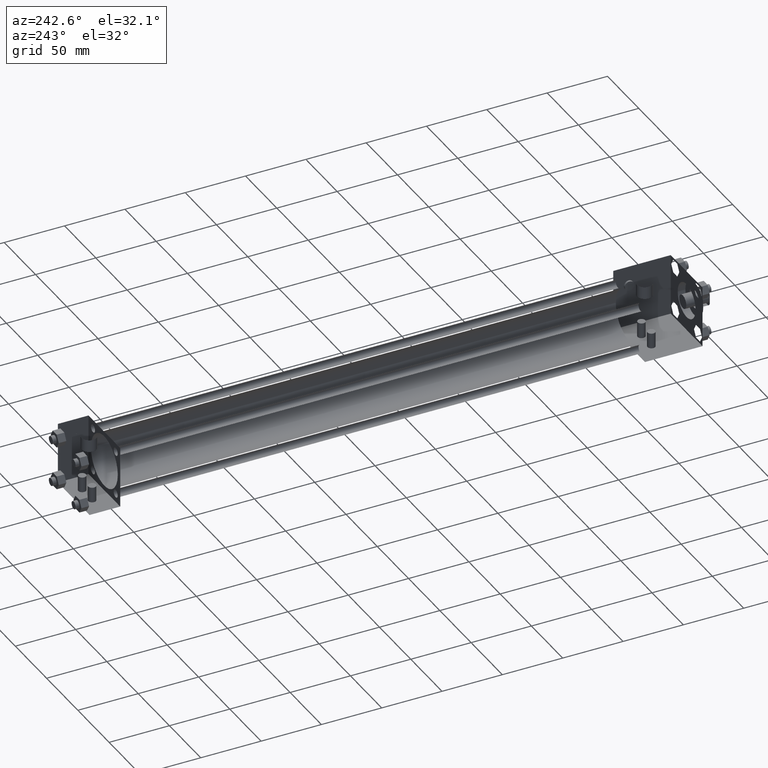
[diagram: clean part render]
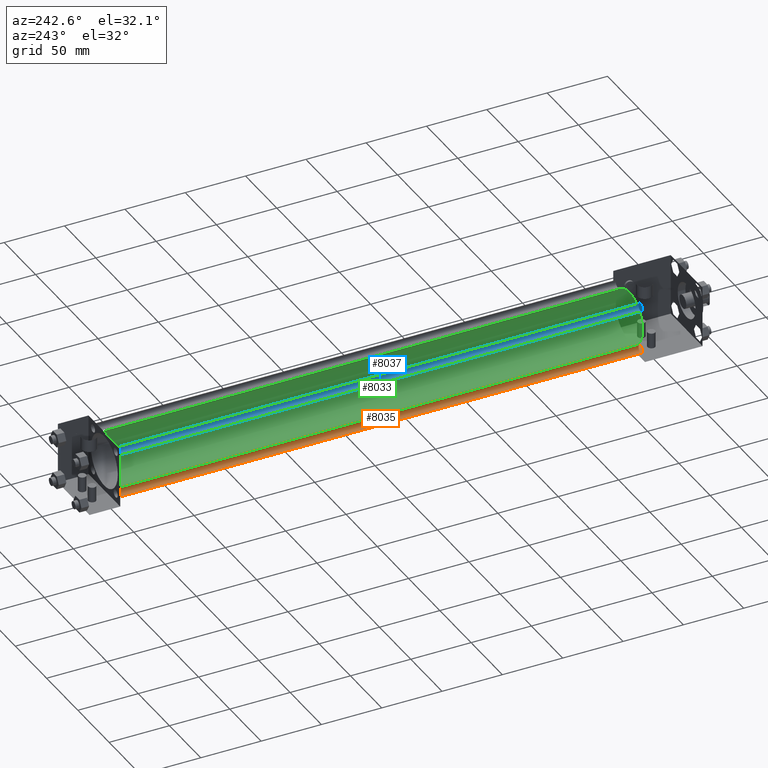
[diagram: same view with three faces highlighted in distinct colors, each labeled with its STEP entity id]
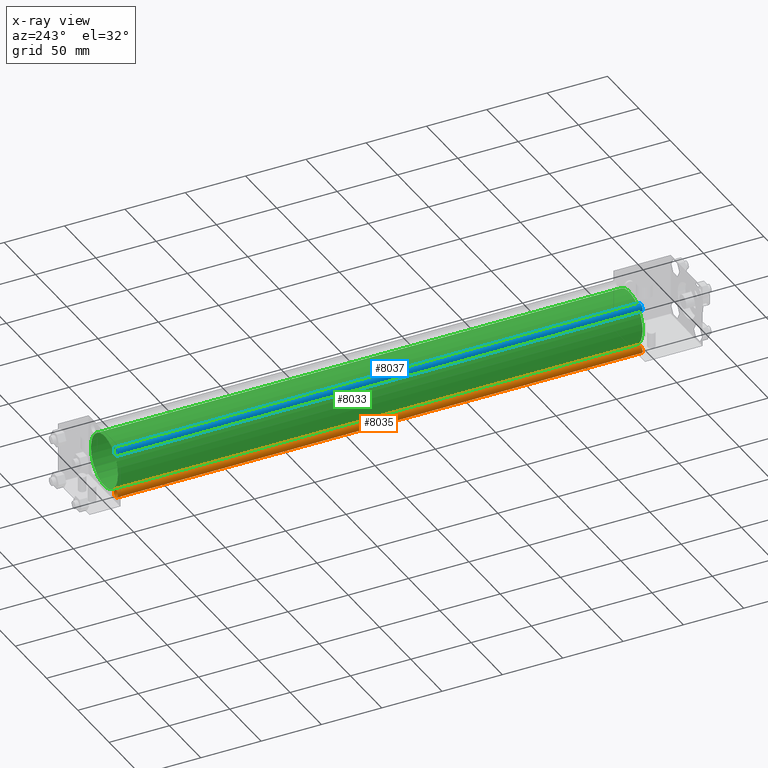
[diagram: x-ray of the same camera — body ghosted, the three highlighted faces saturated]
A machine part, auxiliary view with three faces highlighted in distinct colors.
The next image is the same camera in x-ray (body ghosted, the three faces saturated) — at least one of them is partly hidden behind the body in this view.
Their STEP definitions:

[orange] entity #8035 — the highlighted cylindrical surface (bore or boss wall) has radius 3.175 mm, axis along (0, -1, 0).
#482=EDGE_CURVE('',#488,#488,#483,.T.);
#483=CIRCLE('',#484,3.175000000E+000);
#484=AXIS2_PLACEMENT_3D('',#485,#486,#487);
#485=CARTESIAN_POINT('',(-1.816100000E+001,6.350000000E+001,-1.816100000E+001));
#486=DIRECTION('',(0.0E+000,1.0E+000,0.0E+000));
#487=DIRECTION('',(-1.0E+000,0.0E+000,0.0E+000));
#488=VERTEX_POINT('',#489);
#489=CARTESIAN_POINT('',(-1.498600000E+001,6.350000000E+001,-1.816100000E+001));
#2163=FACE_OUTER_BOUND('',#2165,.T.);
#2164=FACE_BOUND('',#2166,.T.);
#2165=EDGE_LOOP('',(#2167));
#2166=EDGE_LOOP('',(#2168));
#2167=ORIENTED_EDGE('',*,*,#2212,.F.);
#2168=ORIENTED_EDGE('',*,*,#482,.T.);
#2169=CYLINDRICAL_SURFACE('',#2170,3.175000000E+000);
#2170=AXIS2_PLACEMENT_3D('',#2171,#2172,#2173);
#2171=CARTESIAN_POINT('',(-1.816100000E+001,4.984750000E+002,-1.816100000E+001));
#2172=DIRECTION('',(0.0E+000,-1.0E+000,0.0E+000));
#2173=DIRECTION('',(0.0E+000,0.0E+000,-1.0E+000));
#2212=EDGE_CURVE('',#2218,#2218,#2213,.T.);
#2213=CIRCLE('',#2214,3.175000000E+000);
#2214=AXIS2_PLACEMENT_3D('',#2215,#2216,#2217);
#2215=CARTESIAN_POINT('',(-1.816100000E+001,4.984750000E+002,-1.816100000E+001));
#2216=DIRECTION('',(0.0E+000,1.0E+000,0.0E+000));
#2217=DIRECTION('',(1.0E+000,0.0E+000,0.0E+000));
#2218=VERTEX_POINT('',#2219);
#2219=CARTESIAN_POINT('',(-1.498600000E+001,4.984750000E+002,-1.816100000E+001));
#8035=ADVANCED_FACE('',(#2163,#2164),#2169,.T.);

[blue] entity #8037 — the highlighted cylindrical surface (bore or boss wall) has radius 3.175 mm, axis along (0, -1, 0).
#509=EDGE_CURVE('',#515,#515,#510,.T.);
#510=CIRCLE('',#511,3.175000000E+000);
#511=AXIS2_PLACEMENT_3D('',#512,#513,#514);
#512=CARTESIAN_POINT('',(-1.816100000E+001,6.350000000E+001,1.816100000E+001));
#513=DIRECTION('',(0.0E+000,1.0E+000,0.0E+000));
#514=DIRECTION('',(-1.0E+000,0.0E+000,0.0E+000));
#515=VERTEX_POINT('',#516);
#516=CARTESIAN_POINT('',(-1.498600000E+001,6.350000000E+001,1.816100000E+001));
#2185=FACE_OUTER_BOUND('',#2187,.T.);
#2186=FACE_BOUND('',#2188,.T.);
#2187=EDGE_LOOP('',(#2189));
#2188=EDGE_LOOP('',(#2190));
#2189=ORIENTED_EDGE('',*,*,#2244,.F.);
#2190=ORIENTED_EDGE('',*,*,#509,.T.);
#2191=CYLINDRICAL_SURFACE('',#2192,3.175000000E+000);
#2192=AXIS2_PLACEMENT_3D('',#2193,#2194,#2195);
#2193=CARTESIAN_POINT('',(-1.816100000E+001,4.984750000E+002,1.816100000E+001));
#2194=DIRECTION('',(0.0E+000,-1.0E+000,0.0E+000));
#2195=DIRECTION('',(0.0E+000,0.0E+000,-1.0E+000));
#2244=EDGE_CURVE('',#2250,#2250,#2245,.T.);
#2245=CIRCLE('',#2246,3.175000000E+000);
#2246=AXIS2_PLACEMENT_3D('',#2247,#2248,#2249);
#2247=CARTESIAN_POINT('',(-1.816100000E+001,4.984750000E+002,1.816100000E+001));
#2248=DIRECTION('',(0.0E+000,1.0E+000,0.0E+000));
#2249=DIRECTION('',(1.0E+000,0.0E+000,0.0E+000));
#2250=VERTEX_POINT('',#2251);
#2251=CARTESIAN_POINT('',(-1.498600000E+001,4.984750000E+002,1.816100000E+001));
#8037=ADVANCED_FACE('',(#2185,#2186),#2191,.T.);

[green] entity #8033 — the highlighted cylindrical surface (bore or boss wall) has radius 21.463 mm, axis along (0, -1, 0).
#942=EDGE_CURVE('',#948,#948,#943,.T.);
#943=CIRCLE('',#944,2.146300000E+001);
#944=AXIS2_PLACEMENT_3D('',#945,#946,#947);
#945=CARTESIAN_POINT('',(0.000000000E+000,6.350000000E+001,0.000000000E+000));
#946=DIRECTION('',(0.0E+000,1.0E+000,0.0E+000));
#947=DIRECTION('',(-1.0E+000,0.0E+000,0.0E+000));
#948=VERTEX_POINT('',#949);
#949=CARTESIAN_POINT('',(2.146300000E+001,6.350000000E+001,0.000000000E+000));
#2117=FACE_OUTER_BOUND('',#2119,.T.);
#2118=FACE_BOUND('',#2120,.T.);
#2119=EDGE_LOOP('',(#2121));
#2120=EDGE_LOOP('',(#2130));
#2121=ORIENTED_EDGE('',*,*,#2122,.F.);
#2122=EDGE_CURVE('',#2128,#2128,#2123,.T.);
#2123=CIRCLE('',#2124,2.146300000E+001);
#2124=AXIS2_PLACEMENT_3D('',#2125,#2126,#2127);
#2125=CARTESIAN_POINT('',(0.000000000E+000,4.984750000E+002,0.000000000E+000));
#2126=DIRECTION('',(0.0E+000,1.0E+000,0.0E+000));
#2127=DIRECTION('',(1.0E+000,0.0E+000,0.0E+000));
#2128=VERTEX_POINT('',#2129);
#2129=CARTESIAN_POINT('',(2.146300000E+001,4.984750000E+002,0.000000000E+000));
#2130=ORIENTED_EDGE('',*,*,#942,.T.);
#2131=CYLINDRICAL_SURFACE('',#2132,2.146300000E+001);
#2132=AXIS2_PLACEMENT_3D('',#2133,#2134,#2135);
#2133=CARTESIAN_POINT('',(0.000000000E+000,4.984750000E+002,0.000000000E+000));
#2134=DIRECTION('',(0.0E+000,-1.0E+000,0.0E+000));
#2135=DIRECTION('',(0.0E+000,0.0E+000,-1.0E+000));
#8033=ADVANCED_FACE('',(#2117,#2118),#2131,.T.);